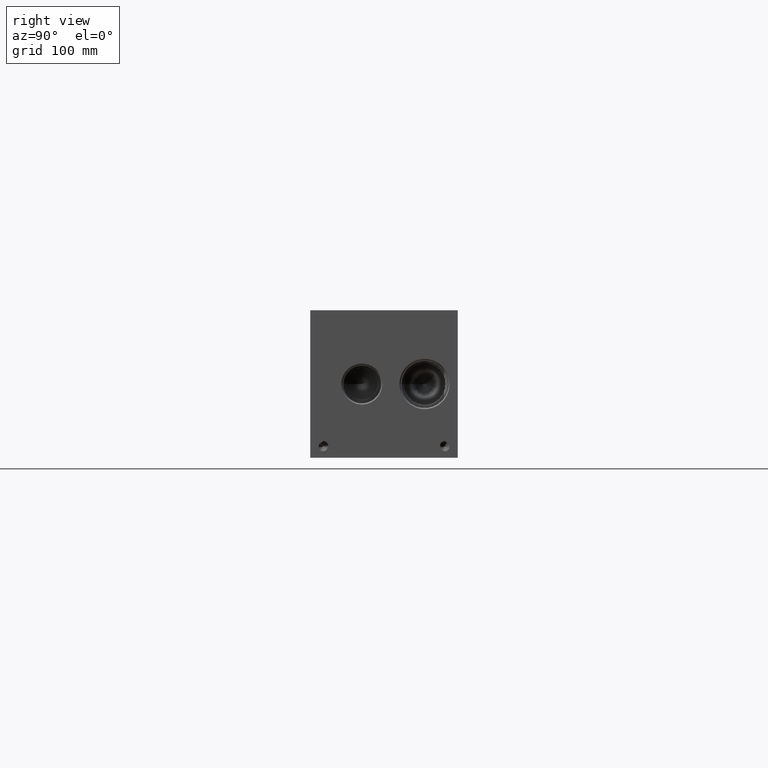
[diagram: clean part render]
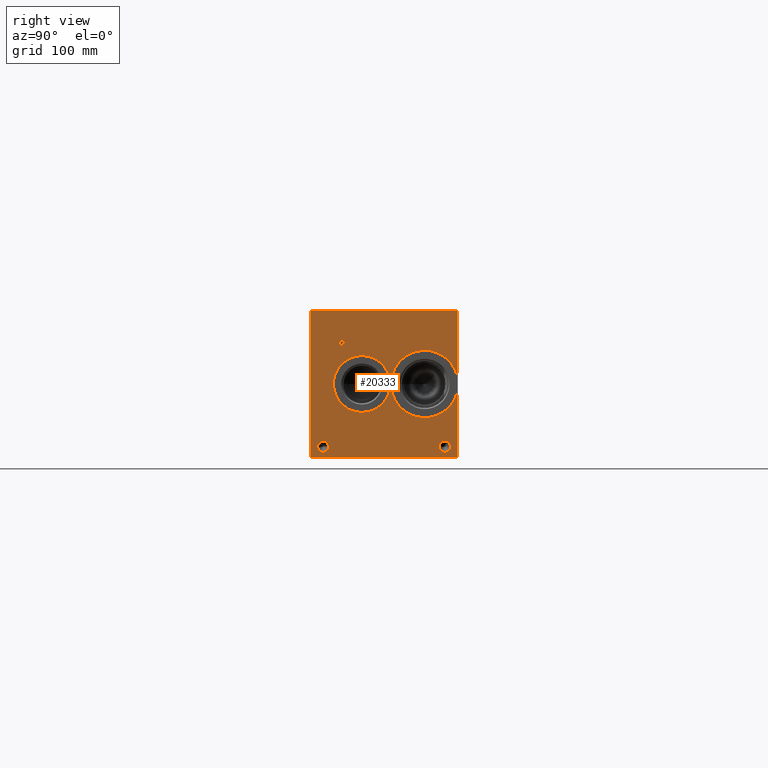
[diagram: same view with one face highlighted and labeled with its STEP entity id]
A machine part, right view. The second image highlights one B-rep face of the part: STEP entity #20333.
In plain terms, the highlighted planar face has unit normal (1, 0, 0).
Its self-contained STEP definition (entity closure, byte-faithful):
#390=CIRCLE('',#21476,28.9814);
#391=CIRCLE('',#21477,24.4856);
#392=CIRCLE('',#21478,24.4856);
#393=CIRCLE('',#21479,4.7625);
#394=CIRCLE('',#21480,4.7625);
#395=CIRCLE('',#21481,4.7625);
#396=CIRCLE('',#21482,4.7625);
#1138=FACE_BOUND('',#3212,.T.);
#1139=FACE_BOUND('',#3213,.T.);
#1140=FACE_BOUND('',#3214,.T.);
#1141=FACE_BOUND('',#3215,.T.);
#1142=FACE_BOUND('',#3216,.T.);
#1369=B_SPLINE_CURVE_WITH_KNOTS('',2,(#28353,#28354,#28355,#28356),
 .UNSPECIFIED.,.F.,.F.,(3,1,3),(0.,1.,2.),.UNSPECIFIED.);
#1371=B_SPLINE_CURVE_WITH_KNOTS('',2,(#28374,#28375,#28376,#28377),
 .UNSPECIFIED.,.F.,.F.,(3,1,3),(0.,1.,2.),.UNSPECIFIED.);
#1373=B_SPLINE_CURVE_WITH_KNOTS('',2,(#28423,#28424,#28425,#28426),
 .UNSPECIFIED.,.F.,.F.,(3,1,3),(0.,1.,2.),.UNSPECIFIED.);
#1375=B_SPLINE_CURVE_WITH_KNOTS('',2,(#28441,#28442,#28443,#28444),
 .UNSPECIFIED.,.F.,.F.,(3,1,3),(0.,1.,2.),.UNSPECIFIED.);
#2074=FACE_OUTER_BOUND('',#3211,.T.);
#3211=EDGE_LOOP('',(#13276,#13277,#13278,#13279,#13280,#13281));
#3212=EDGE_LOOP('',(#13282,#13283,#13284,#13285,#13286,#13287,#13288,#13289));
#3213=EDGE_LOOP('',(#13290,#13291));
#3214=EDGE_LOOP('',(#13292,#13293));
#3215=EDGE_LOOP('',(#13294,#13295));
#3216=EDGE_LOOP('',(#13296,#13297,#13298,#13299,#13300,#13301,#13302,#13303,
#13304));
#4544=LINE('',#28203,#6322);
#4548=LINE('',#28211,#6326);
#4551=LINE('',#28217,#6329);
#4554=LINE('',#28223,#6332);
#4557=LINE('',#28229,#6335);
#4560=LINE('',#28235,#6338);
#4563=LINE('',#28241,#6341);
#4566=LINE('',#28246,#6344);
#4584=LINE('',#28386,#6362);
#4587=LINE('',#28392,#6365);
#4590=LINE('',#28398,#6368);
#4593=LINE('',#28404,#6371);
#4596=LINE('',#28410,#6374);
#4600=LINE('',#28455,#6378);
#4601=LINE('',#28457,#6379);
#4602=LINE('',#28459,#6380);
#4603=LINE('',#28461,#6381);
#4604=LINE('',#28462,#6382);
#6322=VECTOR('',#23115,10.);
#6326=VECTOR('',#23121,10.);
#6329=VECTOR('',#23126,10.);
#6332=VECTOR('',#23131,10.);
#6335=VECTOR('',#23136,10.);
#6338=VECTOR('',#23141,10.);
#6341=VECTOR('',#23146,10.);
#6344=VECTOR('',#23151,10.);
#6362=VECTOR('',#23179,10.);
#6365=VECTOR('',#23184,10.);
#6368=VECTOR('',#23189,10.);
#6371=VECTOR('',#23194,10.);
#6374=VECTOR('',#23199,10.);
#6378=VECTOR('',#23209,10.);
#6379=VECTOR('',#23210,10.);
#6380=VECTOR('',#23211,10.);
#6381=VECTOR('',#23212,10.);
#6382=VECTOR('',#23213,10.);
#8100=VERTEX_POINT('',#28201);
#8101=VERTEX_POINT('',#28202);
#8104=VERTEX_POINT('',#28210);
#8106=VERTEX_POINT('',#28216);
#8108=VERTEX_POINT('',#28222);
#8110=VERTEX_POINT('',#28228);
#8112=VERTEX_POINT('',#28234);
#8114=VERTEX_POINT('',#28240);
#8130=VERTEX_POINT('',#28351);
#8131=VERTEX_POINT('',#28352);
#8134=VERTEX_POINT('',#28373);
#8136=VERTEX_POINT('',#28385);
#8138=VERTEX_POINT('',#28391);
#8140=VERTEX_POINT('',#28397);
#8142=VERTEX_POINT('',#28403);
#8144=VERTEX_POINT('',#28409);
#8146=VERTEX_POINT('',#28422);
#8148=VERTEX_POINT('',#28451);
#8149=VERTEX_POINT('',#28452);
#8150=VERTEX_POINT('',#28454);
#8151=VERTEX_POINT('',#28456);
#8152=VERTEX_POINT('',#28458);
#8153=VERTEX_POINT('',#28460);
#8154=VERTEX_POINT('',#28463);
#8155=VERTEX_POINT('',#28464);
#8156=VERTEX_POINT('',#28467);
#8157=VERTEX_POINT('',#28468);
#8158=VERTEX_POINT('',#28471);
#8159=VERTEX_POINT('',#28472);
#10173=EDGE_CURVE('',#8100,#8101,#4544,.T.);
#10177=EDGE_CURVE('',#8104,#8100,#4548,.T.);
#10180=EDGE_CURVE('',#8106,#8104,#4551,.T.);
#10183=EDGE_CURVE('',#8108,#8106,#4554,.T.);
#10186=EDGE_CURVE('',#8110,#8108,#4557,.T.);
#10189=EDGE_CURVE('',#8112,#8110,#4560,.T.);
#10192=EDGE_CURVE('',#8114,#8112,#4563,.T.);
#10195=EDGE_CURVE('',#8101,#8114,#4566,.T.);
#10218=EDGE_CURVE('',#8130,#8131,#1369,.T.);
#10222=EDGE_CURVE('',#8134,#8130,#1371,.T.);
#10225=EDGE_CURVE('',#8136,#8134,#4584,.T.);
#10228=EDGE_CURVE('',#8138,#8136,#4587,.T.);
#10231=EDGE_CURVE('',#8140,#8138,#4590,.T.);
#10234=EDGE_CURVE('',#8142,#8140,#4593,.T.);
#10237=EDGE_CURVE('',#8144,#8142,#4596,.T.);
#10240=EDGE_CURVE('',#8146,#8144,#1373,.T.);
#10243=EDGE_CURVE('',#8131,#8146,#1375,.T.);
#10245=EDGE_CURVE('',#8148,#8149,#390,.T.);
#10246=EDGE_CURVE('',#8149,#8150,#4600,.T.);
#10247=EDGE_CURVE('',#8151,#8150,#4601,.T.);
#10248=EDGE_CURVE('',#8152,#8151,#4602,.T.);
#10249=EDGE_CURVE('',#8152,#8153,#4603,.T.);
#10250=EDGE_CURVE('',#8153,#8148,#4604,.T.);
#10251=EDGE_CURVE('',#8154,#8155,#391,.T.);
#10252=EDGE_CURVE('',#8155,#8154,#392,.T.);
#10253=EDGE_CURVE('',#8156,#8157,#393,.T.);
#10254=EDGE_CURVE('',#8157,#8156,#394,.T.);
#10255=EDGE_CURVE('',#8158,#8159,#395,.T.);
#10256=EDGE_CURVE('',#8159,#8158,#396,.T.);
#13276=ORIENTED_EDGE('',*,*,#10245,.T.);
#13277=ORIENTED_EDGE('',*,*,#10246,.T.);
#13278=ORIENTED_EDGE('',*,*,#10247,.F.);
#13279=ORIENTED_EDGE('',*,*,#10248,.F.);
#13280=ORIENTED_EDGE('',*,*,#10249,.T.);
#13281=ORIENTED_EDGE('',*,*,#10250,.T.);
#13282=ORIENTED_EDGE('',*,*,#10173,.T.);
#13283=ORIENTED_EDGE('',*,*,#10195,.T.);
#13284=ORIENTED_EDGE('',*,*,#10192,.T.);
#13285=ORIENTED_EDGE('',*,*,#10189,.T.);
#13286=ORIENTED_EDGE('',*,*,#10186,.T.);
#13287=ORIENTED_EDGE('',*,*,#10183,.T.);
#13288=ORIENTED_EDGE('',*,*,#10180,.T.);
#13289=ORIENTED_EDGE('',*,*,#10177,.T.);
#13290=ORIENTED_EDGE('',*,*,#10251,.T.);
#13291=ORIENTED_EDGE('',*,*,#10252,.T.);
#13292=ORIENTED_EDGE('',*,*,#10253,.T.);
#13293=ORIENTED_EDGE('',*,*,#10254,.T.);
#13294=ORIENTED_EDGE('',*,*,#10255,.T.);
#13295=ORIENTED_EDGE('',*,*,#10256,.T.);
#13296=ORIENTED_EDGE('',*,*,#10218,.T.);
#13297=ORIENTED_EDGE('',*,*,#10243,.T.);
#13298=ORIENTED_EDGE('',*,*,#10240,.T.);
#13299=ORIENTED_EDGE('',*,*,#10237,.T.);
#13300=ORIENTED_EDGE('',*,*,#10234,.T.);
#13301=ORIENTED_EDGE('',*,*,#10231,.T.);
#13302=ORIENTED_EDGE('',*,*,#10228,.T.);
#13303=ORIENTED_EDGE('',*,*,#10225,.T.);
#13304=ORIENTED_EDGE('',*,*,#10222,.T.);
#19140=PLANE('',#21475);
#20333=ADVANCED_FACE('',(#2074,#1138,#1139,#1140,#1141,#1142),#19140,.T.);
#21475=AXIS2_PLACEMENT_3D('',#28450,#23205,#23206);
#21476=AXIS2_PLACEMENT_3D('',#28453,#23207,#23208);
#21477=AXIS2_PLACEMENT_3D('',#28465,#23214,#23215);
#21478=AXIS2_PLACEMENT_3D('',#28466,#23216,#23217);
#21479=AXIS2_PLACEMENT_3D('',#28469,#23218,#23219);
#21480=AXIS2_PLACEMENT_3D('',#28470,#23220,#23221);
#21481=AXIS2_PLACEMENT_3D('',#28473,#23222,#23223);
#21482=AXIS2_PLACEMENT_3D('',#28474,#23224,#23225);
#23115=DIRECTION('',(0.,-1.,0.));
#23121=DIRECTION('',(0.,0.,-1.));
#23126=DIRECTION('',(0.,-1.,0.));
#23131=DIRECTION('',(0.,0.,-1.));
#23136=DIRECTION('',(0.,1.,0.));
#23141=DIRECTION('',(0.,0.,1.));
#23146=DIRECTION('',(0.,-1.,0.));
#23151=DIRECTION('',(0.,0.,1.));
#23179=DIRECTION('',(0.,1.,0.));
#23184=DIRECTION('',(0.,0.,1.));
#23189=DIRECTION('',(0.,-1.,0.));
#23194=DIRECTION('',(0.,0.,-1.));
#23199=DIRECTION('',(0.,-1.,0.));
#23205=DIRECTION('center_axis',(1.,0.,0.));
#23206=DIRECTION('ref_axis',(0.,1.,0.));
#23207=DIRECTION('center_axis',(-1.,0.,0.));
#23208=DIRECTION('ref_axis',(0.,1.,0.));
#23209=DIRECTION('',(0.,0.,1.));
#23210=DIRECTION('',(0.,1.,0.));
#23211=DIRECTION('',(0.,0.,1.));
#23212=DIRECTION('',(0.,1.,0.));
#23213=DIRECTION('',(0.,0.,1.));
#23214=DIRECTION('center_axis',(-1.,0.,0.));
#23215=DIRECTION('ref_axis',(0.,0.,-1.));
#23216=DIRECTION('center_axis',(-1.,0.,0.));
#23217=DIRECTION('ref_axis',(0.,0.,-1.));
#23218=DIRECTION('center_axis',(-1.,0.,0.));
#23219=DIRECTION('ref_axis',(0.,1.,0.));
#23220=DIRECTION('center_axis',(-1.,0.,0.));
#23221=DIRECTION('ref_axis',(0.,1.,0.));
#23222=DIRECTION('center_axis',(-1.,0.,0.));
#23223=DIRECTION('ref_axis',(0.,1.,0.));
#23224=DIRECTION('center_axis',(-1.,0.,0.));
#23225=DIRECTION('ref_axis',(0.,1.,0.));
#28201=CARTESIAN_POINT('',(603.25,117.269165271453,94.45625));
#28202=CARTESIAN_POINT('',(603.25,116.425243079913,94.45625));
#28203=CARTESIAN_POINT('',(603.25,58.6345826357265,94.45625));
#28210=CARTESIAN_POINT('',(603.25,117.269165271453,100.054953319482));
#28211=CARTESIAN_POINT('',(603.25,117.269165271453,50.0274766597408));
#28216=CARTESIAN_POINT('',(603.25,119.399554218388,100.054953319482));
#28217=CARTESIAN_POINT('',(603.25,59.699777109194,100.054953319482));
#28222=CARTESIAN_POINT('',(603.25,119.399554218388,100.806249904633));
#28223=CARTESIAN_POINT('',(603.25,119.399554218388,50.4031249523163));
#28228=CARTESIAN_POINT('',(603.25,114.294854132978,100.806249904633));
#28229=CARTESIAN_POINT('',(603.25,57.1474270664892,100.806249904633));
#28234=CARTESIAN_POINT('',(603.25,114.294854132978,100.054953319482));
#28235=CARTESIAN_POINT('',(603.25,114.294854132978,50.0274766597408));
#28240=CARTESIAN_POINT('',(603.25,116.425243079913,100.054953319482));
#28241=CARTESIAN_POINT('',(603.25,58.2126215399567,100.054953319482));
#28246=CARTESIAN_POINT('',(603.25,116.425243079913,47.228125));
#28351=CARTESIAN_POINT('',(603.25,28.5068172023594,100.410018143971));
#28352=CARTESIAN_POINT('',(603.25,29.263259654532,98.8919873726039));
#28353=CARTESIAN_POINT('Ctrl Pts',(603.25,28.5068172023594,100.410018143971));
#28354=CARTESIAN_POINT('Ctrl Pts',(603.25,28.8618820268486,100.168162393956));
#28355=CARTESIAN_POINT('Ctrl Pts',(603.25,29.263259654532,99.4220116758269));
#28356=CARTESIAN_POINT('Ctrl Pts',(603.25,29.263259654532,98.8919873726039));
#28373=CARTESIAN_POINT('',(603.25,26.8447021543883,100.806249904633));
#28374=CARTESIAN_POINT('Ctrl Pts',(603.25,26.8447021543883,100.806249904633));
#28375=CARTESIAN_POINT('Ctrl Pts',(603.25,27.4107475267624,100.806249904633));
#28376=CARTESIAN_POINT('Ctrl Pts',(603.25,28.203211048086,100.620998691856));
#28377=CARTESIAN_POINT('Ctrl Pts',(603.25,28.5068172023594,100.410018143971));
#28385=CARTESIAN_POINT('',(603.25,25.2494833776978,100.806249904633));
#28386=CARTESIAN_POINT('',(603.25,12.6247416888489,100.806249904633));
#28391=CARTESIAN_POINT('',(603.25,25.2494833776978,94.45625));
#28392=CARTESIAN_POINT('',(603.25,25.2494833776978,47.228125));
#28397=CARTESIAN_POINT('',(603.25,26.0934055692373,94.45625));
#28398=CARTESIAN_POINT('',(603.25,13.0467027846186,94.45625));
#28403=CARTESIAN_POINT('',(603.25,26.0934055692373,96.8233488299279));
#28404=CARTESIAN_POINT('',(603.25,26.0934055692373,48.4116744149639));
#28409=CARTESIAN_POINT('',(603.25,26.8086810852372,96.8233488299279));
#28410=CARTESIAN_POINT('',(603.25,13.4043405426186,96.8233488299279));
#28422=CARTESIAN_POINT('',(603.25,28.7075060162011,97.4820198086904));
#28423=CARTESIAN_POINT('Ctrl Pts',(603.25,28.7075060162011,97.4820198086904));
#28424=CARTESIAN_POINT('Ctrl Pts',(603.25,28.3781705268198,97.1578301863307));
#28425=CARTESIAN_POINT('Ctrl Pts',(603.25,27.4879355320861,96.8233488299279));
#28426=CARTESIAN_POINT('Ctrl Pts',(603.25,26.8086810852372,96.8233488299279));
#28441=CARTESIAN_POINT('Ctrl Pts',(603.25,29.263259654532,98.8919873726039));
#28442=CARTESIAN_POINT('Ctrl Pts',(603.25,29.263259654532,98.4803180108774));
#28443=CARTESIAN_POINT('Ctrl Pts',(603.25,28.9699452343018,97.7393131597695));
#28444=CARTESIAN_POINT('Ctrl Pts',(603.25,28.7075060162011,97.4820198086904));
#28450=CARTESIAN_POINT('Origin',(603.25,0.,0.));
#28451=CARTESIAN_POINT('',(603.25,127.,58.6635838723286));
#28452=CARTESIAN_POINT('',(603.25,127.,68.3364161276714));
#28453=CARTESIAN_POINT('Origin',(603.25,98.425,63.5));
#28454=CARTESIAN_POINT('',(603.25,127.,127.));
#28455=CARTESIAN_POINT('',(603.25,127.,0.));
#28456=CARTESIAN_POINT('',(603.25,0.,127.));
#28457=CARTESIAN_POINT('',(603.25,0.,127.));
#28458=CARTESIAN_POINT('',(603.25,0.,0.));
#28459=CARTESIAN_POINT('',(603.25,0.,0.));
#28460=CARTESIAN_POINT('',(603.25,127.,0.));
#28461=CARTESIAN_POINT('',(603.25,0.,0.));
#28462=CARTESIAN_POINT('',(603.25,127.,0.));
#28463=CARTESIAN_POINT('',(603.25,44.45,39.0144));
#28464=CARTESIAN_POINT('',(603.25,44.45,87.9856));
#28465=CARTESIAN_POINT('Origin',(603.25,44.45,63.5));
#28466=CARTESIAN_POINT('Origin',(603.25,44.45,63.5));
#28467=CARTESIAN_POINT('',(603.25,15.8877,9.525));
#28468=CARTESIAN_POINT('',(603.25,6.3627,9.525));
#28469=CARTESIAN_POINT('Origin',(603.25,11.1252,9.525));
#28470=CARTESIAN_POINT('Origin',(603.25,11.1252,9.525));
#28471=CARTESIAN_POINT('',(603.25,120.6627,9.525));
#28472=CARTESIAN_POINT('',(603.25,111.1377,9.525));
#28473=CARTESIAN_POINT('Origin',(603.25,115.9002,9.525));
#28474=CARTESIAN_POINT('Origin',(603.25,115.9002,9.525));